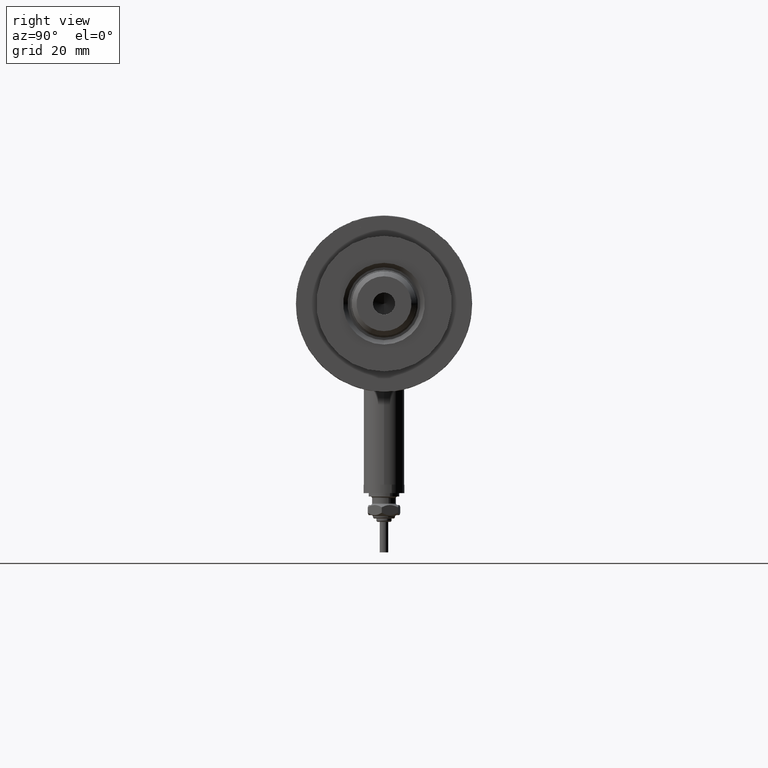
[diagram: clean part render]
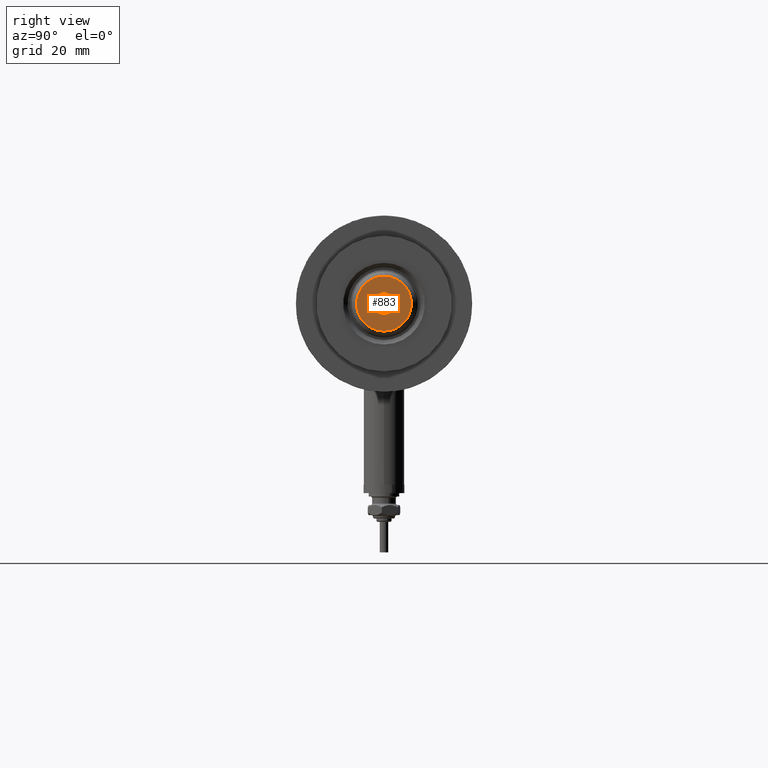
[diagram: same view with one face highlighted and labeled with its STEP entity id]
A machine part, right view. The second image highlights one B-rep face of the part: STEP entity #883.
In plain terms, the highlighted planar face has unit normal (1, 0, -0).
Its self-contained STEP definition (entity closure, byte-faithful):
#2 = CARTESIAN_POINT ( 'NONE',  ( 8.099999999999981881, 1.077689183249669619E-15, 149.6000000000000227 ) ) ;
#55 = DIRECTION ( 'NONE',  ( 1.000000000000000000, 0.000000000000000000, 0.000000000000000000 ) ) ;
#134 = EDGE_CURVE ( 'NONE', #522, #4366, #1495, .T. ) ;
#213 = AXIS2_PLACEMENT_3D ( 'NONE', #2989, #3923, #2921 ) ;
#522 = VERTEX_POINT ( 'NONE', #2 ) ;
#542 = CARTESIAN_POINT ( 'NONE',  ( 0.000000000000000000, 0.000000000000000000, 149.6000000000000227 ) ) ;
#732 = CARTESIAN_POINT ( 'NONE',  ( 3.249999999999998224, 0.000000000000000000, 149.6000000000000227 ) ) ;
#883 = ADVANCED_FACE ( 'NONE', ( #1345, #1376 ), #3332, .T. ) ;
#1345 = FACE_OUTER_BOUND ( 'NONE', #3096, .T. ) ;
#1376 = FACE_BOUND ( 'NONE', #3031, .T. ) ;
#1465 = CARTESIAN_POINT ( 'NONE',  ( 0.000000000000000000, 0.000000000000000000, 149.6000000000000227 ) ) ;
#1495 = CIRCLE ( 'NONE', #3951, 8.099999999999981881 ) ;
#1533 = EDGE_CURVE ( 'NONE', #1880, #1704, #2402, .T. ) ;
#1555 = ORIENTED_EDGE ( 'NONE', *, *, #5807, .T. ) ;
#1704 = VERTEX_POINT ( 'NONE', #2869 ) ;
#1880 = VERTEX_POINT ( 'NONE', #732 ) ;
#2000 = AXIS2_PLACEMENT_3D ( 'NONE', #4803, #3722, #2841 ) ;
#2129 = CARTESIAN_POINT ( 'NONE',  ( 0.000000000000000000, 0.000000000000000000, 149.6000000000000227 ) ) ;
#2195 = ORIENTED_EDGE ( 'NONE', *, *, #1533, .F. ) ;
#2402 = CIRCLE ( 'NONE', #4056, 3.249999999999998224 ) ;
#2422 = DIRECTION ( 'NONE',  ( 1.000000000000000000, 0.000000000000000000, 0.000000000000000000 ) ) ;
#2841 = DIRECTION ( 'NONE',  ( 1.000000000000000000, 0.000000000000000000, -0.000000000000000000 ) ) ;
#2858 = CIRCLE ( 'NONE', #213, 3.249999999999998224 ) ;
#2869 = CARTESIAN_POINT ( 'NONE',  ( -3.249999999999998224, 3.980102097228895766E-16, 149.6000000000000227 ) ) ;
#2921 = DIRECTION ( 'NONE',  ( 1.000000000000000000, 0.000000000000000000, 0.000000000000000000 ) ) ;
#2989 = CARTESIAN_POINT ( 'NONE',  ( 0.000000000000000000, 0.000000000000000000, 149.6000000000000227 ) ) ;
#3031 = EDGE_LOOP ( 'NONE', ( #2195, #5093 ) ) ;
#3096 = EDGE_LOOP ( 'NONE', ( #1555, #5605 ) ) ;
#3327 = DIRECTION ( 'NONE',  ( -0.000000000000000000, -0.000000000000000000, 1.000000000000000000 ) ) ;
#3332 = PLANE ( 'NONE',  #2000 ) ;
#3395 = EDGE_CURVE ( 'NONE', #1704, #1880, #2858, .T. ) ;
#3454 = DIRECTION ( 'NONE',  ( 0.000000000000000000, 0.000000000000000000, 1.000000000000000000 ) ) ;
#3495 = AXIS2_PLACEMENT_3D ( 'NONE', #2129, #5131, #4088 ) ;
#3722 = DIRECTION ( 'NONE',  ( 0.000000000000000000, 0.000000000000000000, 1.000000000000000000 ) ) ;
#3923 = DIRECTION ( 'NONE',  ( -0.000000000000000000, -0.000000000000000000, 1.000000000000000000 ) ) ;
#3951 = AXIS2_PLACEMENT_3D ( 'NONE', #1465, #3454, #55 ) ;
#4056 = AXIS2_PLACEMENT_3D ( 'NONE', #542, #3327, #2422 ) ;
#4088 = DIRECTION ( 'NONE',  ( 1.000000000000000000, 0.000000000000000000, 0.000000000000000000 ) ) ;
#4323 = CARTESIAN_POINT ( 'NONE',  ( -8.099999999999981881, 0.000000000000000000, 149.6000000000000227 ) ) ;
#4366 = VERTEX_POINT ( 'NONE', #4323 ) ;
#4803 = CARTESIAN_POINT ( 'NONE',  ( 0.000000000000000000, 0.000000000000000000, 149.6000000000000227 ) ) ;
#5093 = ORIENTED_EDGE ( 'NONE', *, *, #3395, .F. ) ;
#5131 = DIRECTION ( 'NONE',  ( 0.000000000000000000, 0.000000000000000000, 1.000000000000000000 ) ) ;
#5605 = ORIENTED_EDGE ( 'NONE', *, *, #134, .T. ) ;
#5807 = EDGE_CURVE ( 'NONE', #4366, #522, #6243, .T. ) ;
#6243 = CIRCLE ( 'NONE', #3495, 8.099999999999981881 ) ;